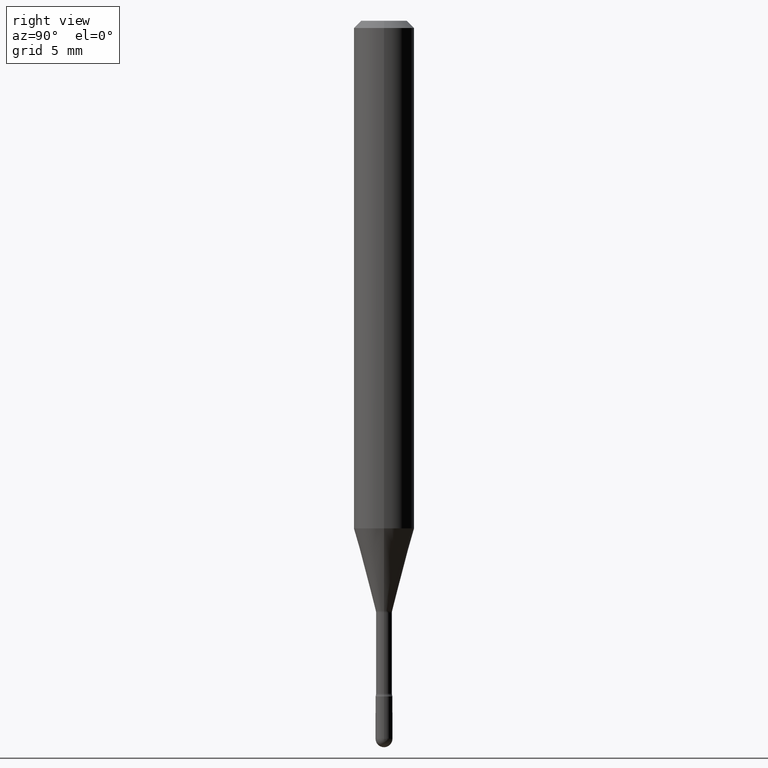
[diagram: clean part render]
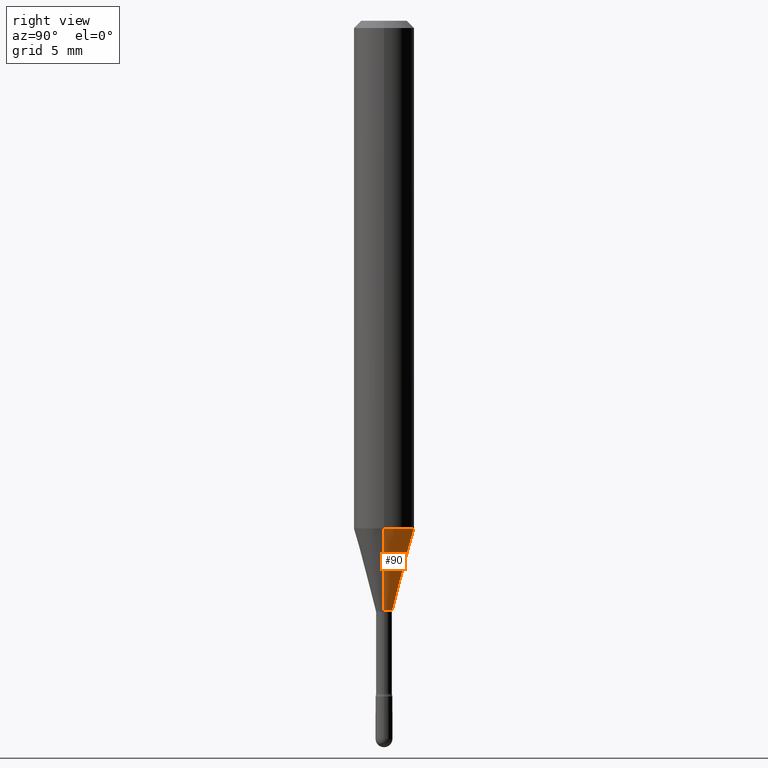
[diagram: same view with one face highlighted and labeled with its STEP entity id]
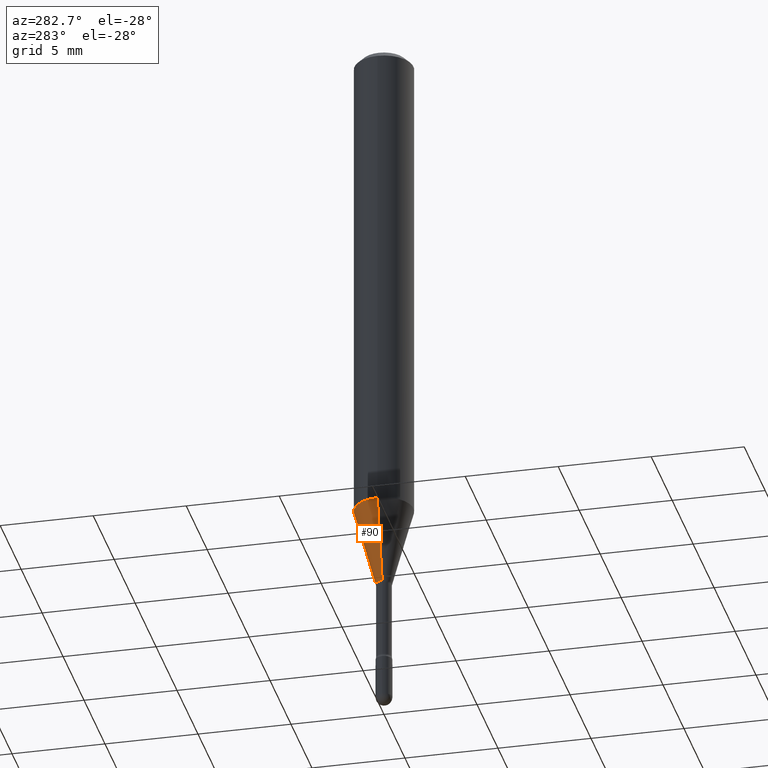
[diagram: same view with one face highlighted and labeled with its STEP entity id]
A machine part, right view. The second image highlights one B-rep face of the part: STEP entity #90.
A second angle (auxiliary view) of the same face is appended — the face is thin or edge-on in the first view.
In plain terms, the highlighted conical surface has half-angle 15 deg.
Its self-contained STEP definition (entity closure, byte-faithful):
#20 = VERTEX_POINT ( 'NONE', #65 ) ;
#24 = VECTOR ( 'NONE', #446, 39.37007874015748143 ) ;
#43 = FACE_OUTER_BOUND ( 'NONE', #230, .T. ) ;
#53 = EDGE_CURVE ( 'NONE', #73, #228, #189, .T. ) ;
#65 = CARTESIAN_POINT ( 'NONE',  ( -0.06250000000000000000, -3.215468759739966983E-15, -1.048139060311453319 ) ) ;
#73 = VERTEX_POINT ( 'NONE', #486 ) ;
#90 = ADVANCED_FACE ( 'NONE', ( #43 ), #414, .T. ) ;
#96 = AXIS2_PLACEMENT_3D ( 'NONE', #330, #201, #509 ) ;
#114 = EDGE_CURVE ( 'NONE', #73, #440, #387, .T. ) ;
#122 = CARTESIAN_POINT ( 'NONE',  ( 0.01696111260566397425, -4.371386055272411165E-15, -1.218092501787273241 ) ) ;
#125 = DIRECTION ( 'NONE',  ( -2.445468806185136597E-29, 3.491481338843145583E-15, 1.000000000000000000 ) ) ;
#156 = AXIS2_PLACEMENT_3D ( 'NONE', #246, #194, #515 ) ;
#189 = CIRCLE ( 'NONE', #96, 0.01696111260566397425 ) ;
#194 = DIRECTION ( 'NONE',  ( -2.445468806185136597E-29, 3.491481338843145583E-15, 1.000000000000000000 ) ) ;
#201 = DIRECTION ( 'NONE',  ( -2.445468806185136597E-29, 3.491481338843145583E-15, 1.000000000000000000 ) ) ;
#213 = DIRECTION ( 'NONE',  ( 0.2588190451025209615, 1.565188264969624926E-15, 0.9659258262890682012 ) ) ;
#228 = VERTEX_POINT ( 'NONE', #302 ) ;
#230 = EDGE_LOOP ( 'NONE', ( #532, #514, #377, #303 ) ) ;
#246 = CARTESIAN_POINT ( 'NONE',  ( 2.563191376535860967E-29, -3.659557969590029993E-15, -1.048139060311453319 ) ) ;
#260 = CIRCLE ( 'NONE', #156, 0.06250000000000000000 ) ;
#271 = VECTOR ( 'NONE', #213, 39.37007874015748143 ) ;
#302 = CARTESIAN_POINT ( 'NONE',  ( -0.01696111260566397425, -3.673950022595677851E-15, -1.218092501787273241 ) ) ;
#303 = ORIENTED_EDGE ( 'NONE', *, *, #114, .F. ) ;
#307 = CARTESIAN_POINT ( 'NONE',  ( 2.978807216168789301E-29, -4.252947238975025450E-15, -1.218092501787273241 ) ) ;
#330 = CARTESIAN_POINT ( 'NONE',  ( 2.978807216168789301E-29, -4.252947238975025450E-15, -1.218092501787273241 ) ) ;
#340 = DIRECTION ( 'NONE',  ( 1.000000000000000000, -6.982962677686286432E-15, 0.000000000000000000 ) ) ;
#352 = CARTESIAN_POINT ( 'NONE',  ( -0.01696111260566397425, -4.132431285451389114E-15, -1.218092501787273241 ) ) ;
#377 = ORIENTED_EDGE ( 'NONE', *, *, #455, .F. ) ;
#387 = LINE ( 'NONE', #122, #271 ) ;
#388 = AXIS2_PLACEMENT_3D ( 'NONE', #307, #125, #340 ) ;
#393 = EDGE_CURVE ( 'NONE', #228, #20, #538, .T. ) ;
#414 = CONICAL_SURFACE ( 'NONE', #388, 0.01696111260566397425, 0.2617993877991496299 ) ;
#440 = VERTEX_POINT ( 'NONE', #530 ) ;
#446 = DIRECTION ( 'NONE',  ( -0.2588190451025209615, 5.211531920934547097E-15, 0.9659258262890682012 ) ) ;
#455 = EDGE_CURVE ( 'NONE', #440, #20, #260, .T. ) ;
#486 = CARTESIAN_POINT ( 'NONE',  ( 0.01696111260566397425, -4.371386055272411165E-15, -1.218092501787273241 ) ) ;
#509 = DIRECTION ( 'NONE',  ( 1.000000000000000000, -6.982962677686286432E-15, 0.000000000000000000 ) ) ;
#514 = ORIENTED_EDGE ( 'NONE', *, *, #393, .T. ) ;
#515 = DIRECTION ( 'NONE',  ( 1.000000000000000000, -6.982962677686270655E-15, 0.000000000000000000 ) ) ;
#530 = CARTESIAN_POINT ( 'NONE',  ( 0.06250000000000000000, -4.095993136945421663E-15, -1.048139060311453319 ) ) ;
#532 = ORIENTED_EDGE ( 'NONE', *, *, #53, .T. ) ;
#538 = LINE ( 'NONE', #352, #24 ) ;